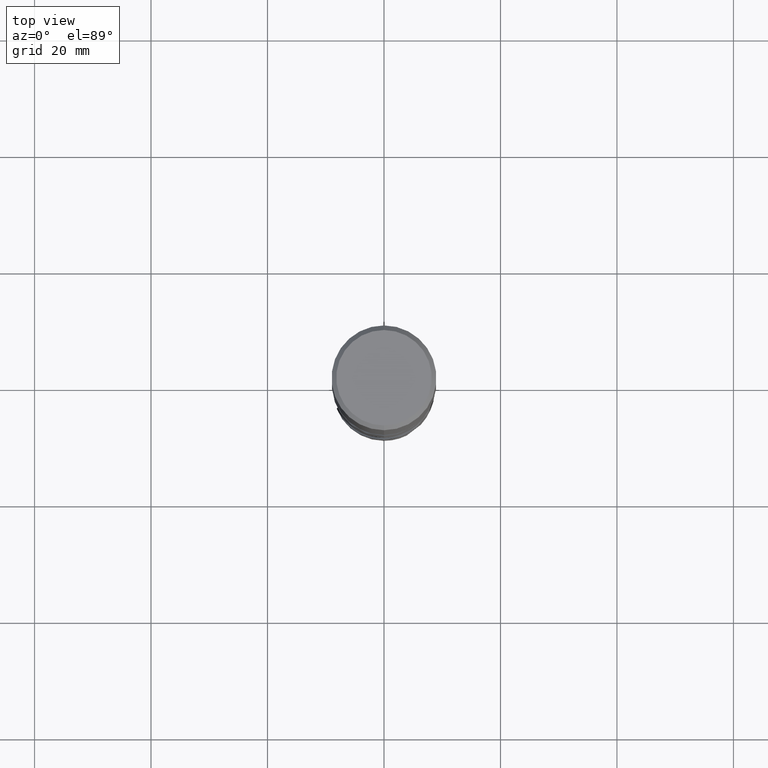
[diagram: clean part render]
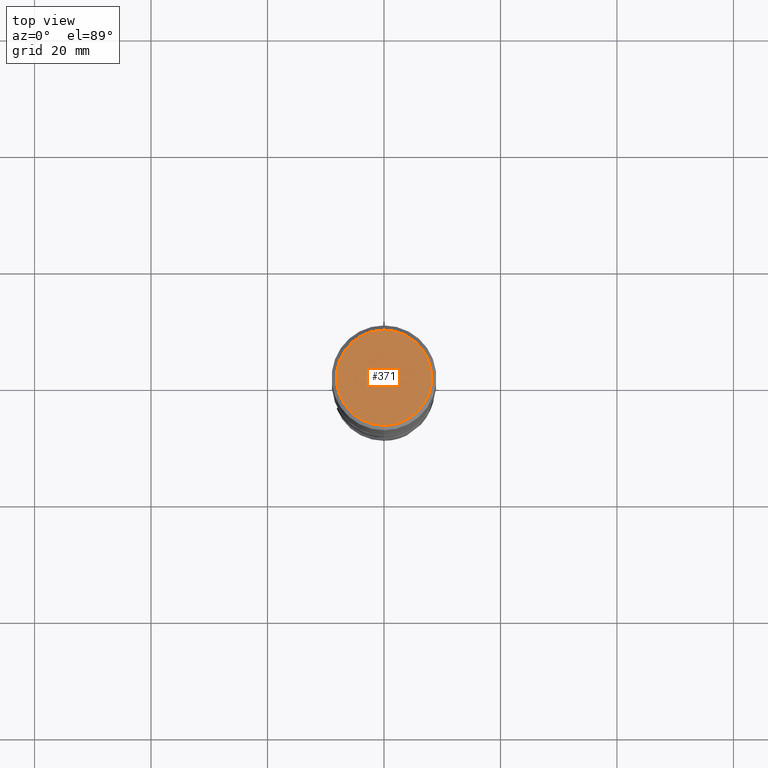
[diagram: same view with one face highlighted and labeled with its STEP entity id]
A machine part, top view. The second image highlights one B-rep face of the part: STEP entity #371.
In plain terms, the highlighted planar face has unit normal (-0, 0, 1).
Its self-contained STEP definition (entity closure, byte-faithful):
#335=VERTEX_POINT('',#828);
#351=EDGE_CURVE('',#645,#335,#846,.T.);
#371=ADVANCED_FACE('',(#867),#868,.T.);
#645=VERTEX_POINT('',#1166);
#681=EDGE_CURVE('',#335,#645,#1203,.T.);
#828=CARTESIAN_POINT('',(0.0,8.2,0.0));
#846=CIRCLE('',#1613,8.2);
#867=FACE_OUTER_BOUND('',#1654,.T.);
#868=PLANE('',#1655);
#1166=CARTESIAN_POINT('',(1.00417721013435E-015,-8.2,0.0));
#1203=CIRCLE('',#4413,8.2);
#1613=AXIS2_PLACEMENT_3D('',#5618,#5619,#5620);
#1654=EDGE_LOOP('',(#5647,#5648));
#1655=AXIS2_PLACEMENT_3D('',#5649,#5650,#5651);
#4413=AXIS2_PLACEMENT_3D('',#5945,#5946,#5947);
#5618=CARTESIAN_POINT('',(0.0,0.0,0.0));
#5619=DIRECTION('',(0.0,0.0,-1.0));
#5620=DIRECTION('',(0.0,1.0,0.0));
#5647=ORIENTED_EDGE('',*,*,#681,.F.);
#5648=ORIENTED_EDGE('',*,*,#351,.F.);
#5649=CARTESIAN_POINT('',(0.0,4.1,0.0));
#5650=DIRECTION('',(-0.0,0.0,1.0));
#5651=DIRECTION('',(0.0,-1.0,0.0));
#5945=CARTESIAN_POINT('',(0.0,0.0,0.0));
#5946=DIRECTION('',(0.0,0.0,-1.0));
#5947=DIRECTION('',(0.0,1.0,0.0));